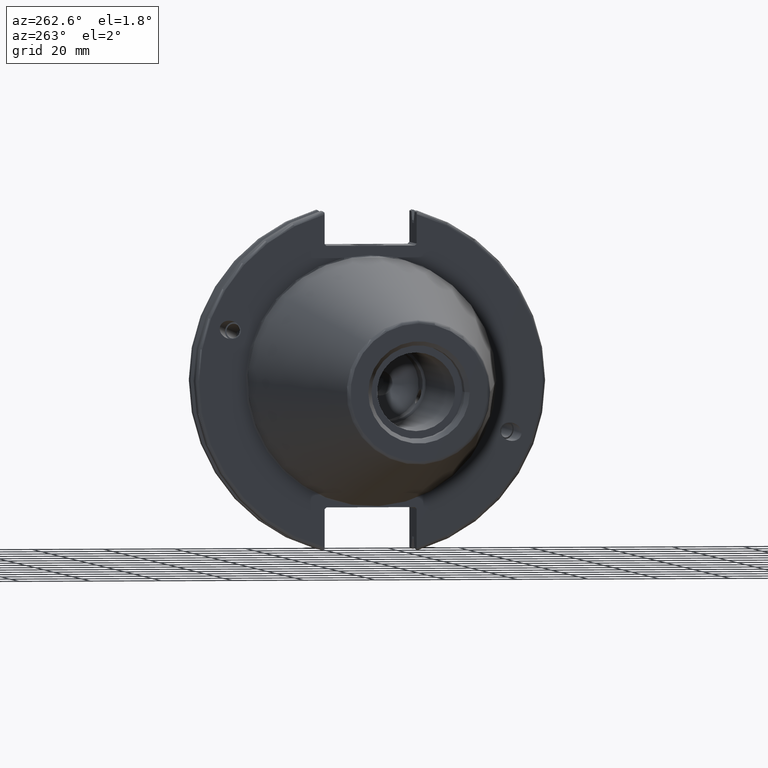
[diagram: clean part render]
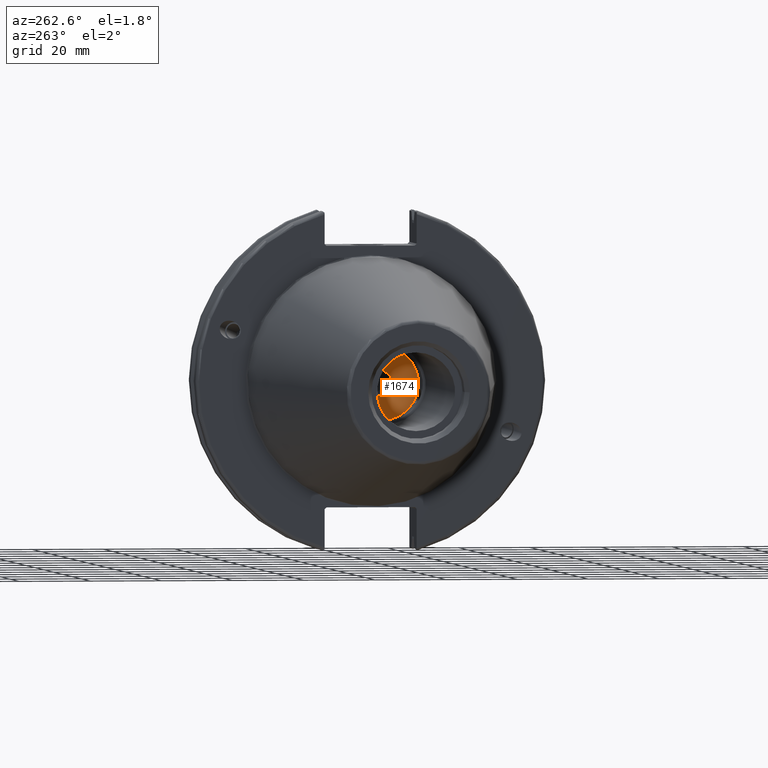
[diagram: same view with one face highlighted and labeled with its STEP entity id]
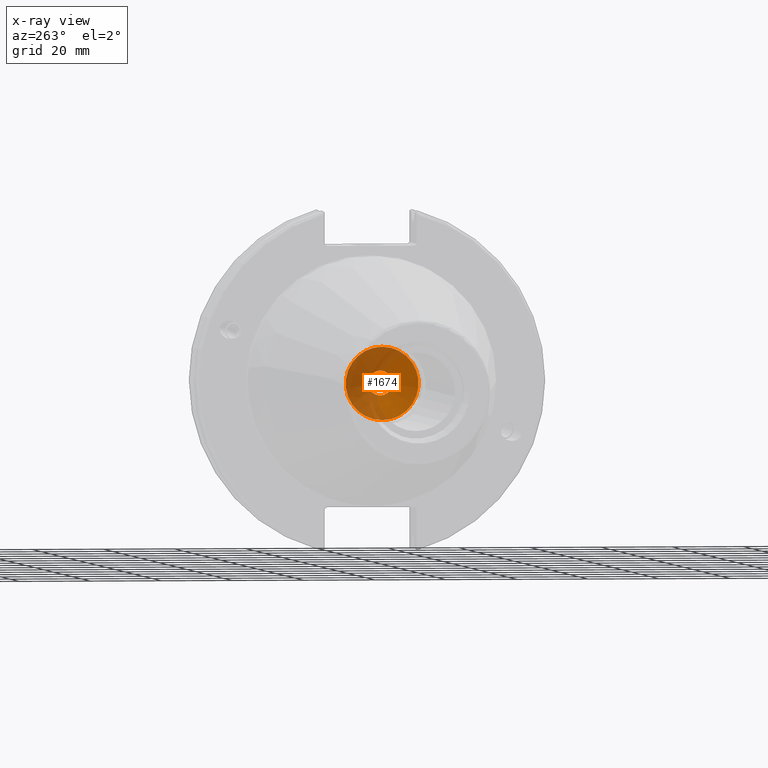
[diagram: x-ray of the same camera — body ghosted, the highlighted face saturated]
A machine part, auxiliary view. The second image highlights one B-rep face of the part: STEP entity #1674.
The next image is the same camera in x-ray: the body ghosted, the highlighted face saturated — about 55% of this face is hidden behind the body in this view.
In plain terms, the highlighted conical surface has half-angle 59 deg.
Its self-contained STEP definition (entity closure, byte-faithful):
#127=CONICAL_SURFACE('',#1859,5.125,1.02974425867665);
#162=LINE('',#2726,#256);
#256=VECTOR('',#2207,5.125);
#386=FACE_OUTER_BOUND('',#490,.T.);
#490=EDGE_LOOP('',(#1269,#1270,#1271,#1272,#1273));
#629=CIRCLE('',#1850,3.4585);
#630=CIRCLE('',#1851,3.4585);
#634=CIRCLE('',#1860,10.25);
#739=VERTEX_POINT('',#2706);
#740=VERTEX_POINT('',#2708);
#744=VERTEX_POINT('',#2724);
#932=EDGE_CURVE('',#740,#739,#629,.T.);
#933=EDGE_CURVE('',#739,#740,#630,.T.);
#939=EDGE_CURVE('',#744,#744,#634,.T.);
#940=EDGE_CURVE('',#744,#740,#162,.T.);
#1269=ORIENTED_EDGE('',*,*,#939,.T.);
#1270=ORIENTED_EDGE('',*,*,#940,.T.);
#1271=ORIENTED_EDGE('',*,*,#932,.T.);
#1272=ORIENTED_EDGE('',*,*,#933,.T.);
#1273=ORIENTED_EDGE('',*,*,#940,.F.);
#1674=ADVANCED_FACE('',(#386),#127,.F.);
#1850=AXIS2_PLACEMENT_3D('',#2709,#2183,#2184);
#1851=AXIS2_PLACEMENT_3D('',#2710,#2185,#2186);
#1859=AXIS2_PLACEMENT_3D('',#2723,#2203,#2204);
#1860=AXIS2_PLACEMENT_3D('',#2725,#2205,#2206);
#2183=DIRECTION('center_axis',(1.,0.,0.));
#2184=DIRECTION('ref_axis',(0.,0.,-1.));
#2185=DIRECTION('center_axis',(1.,0.,0.));
#2186=DIRECTION('ref_axis',(0.,0.,-1.));
#2203=DIRECTION('center_axis',(-1.,0.,0.));
#2204=DIRECTION('ref_axis',(0.,0.,1.));
#2205=DIRECTION('center_axis',(-1.,0.,0.));
#2206=DIRECTION('ref_axis',(0.,0.,1.));
#2207=DIRECTION('',(0.515038074910054,1.04972719113862E-16,0.857167300702112));
#2706=CARTESIAN_POINT('',(-17.5192551058743,-4.23544095485112E-16,3.4585));
#2708=CARTESIAN_POINT('',(-17.5192551058743,-4.2354409548511E-16,-3.45849999999999));
#2709=CARTESIAN_POINT('Origin',(-17.5192551058743,0.,0.));
#2710=CARTESIAN_POINT('Origin',(-17.5192551058743,0.,0.));
#2723=CARTESIAN_POINT('Origin',(-18.5205893274838,0.,0.));
#2724=CARTESIAN_POINT('',(-21.6,-1.25526296912604E-15,-10.25));
#2725=CARTESIAN_POINT('Origin',(-21.6,0.,0.));
#2726=CARTESIAN_POINT('',(-18.5205893274838,-6.27631484563019E-16,-5.125));